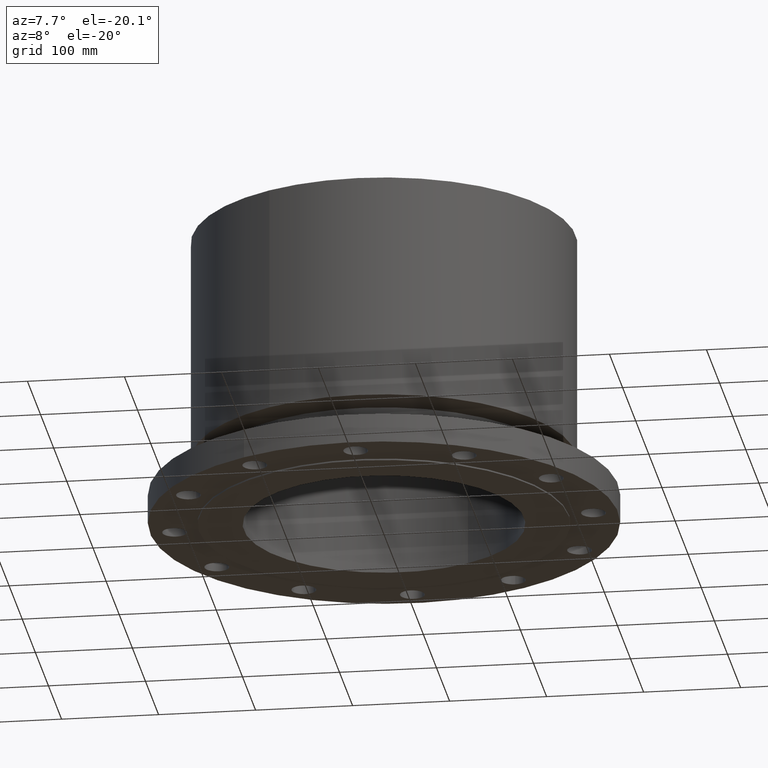
[diagram: clean part render]
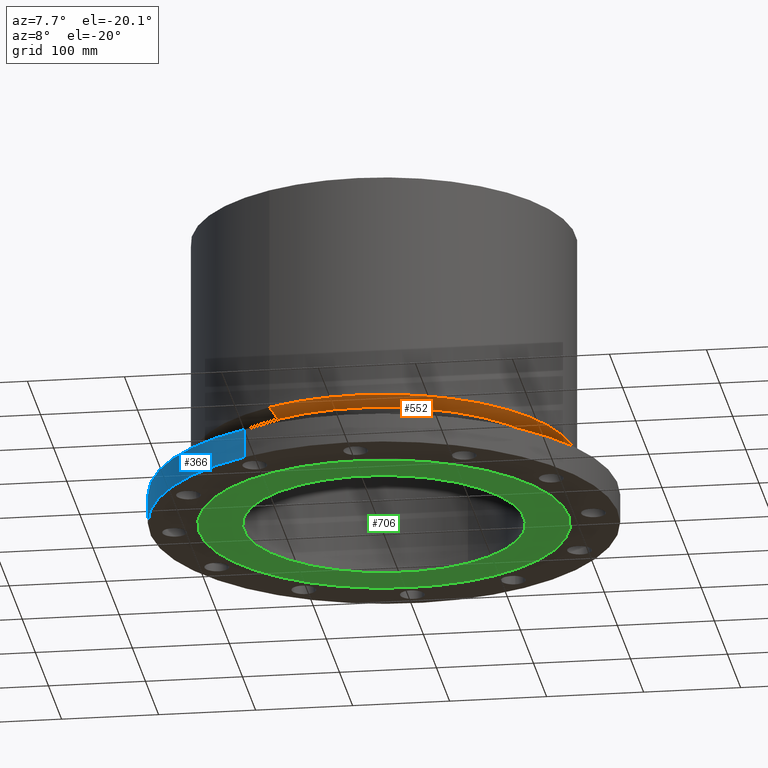
[diagram: same view with three faces highlighted in distinct colors, each labeled with its STEP entity id]
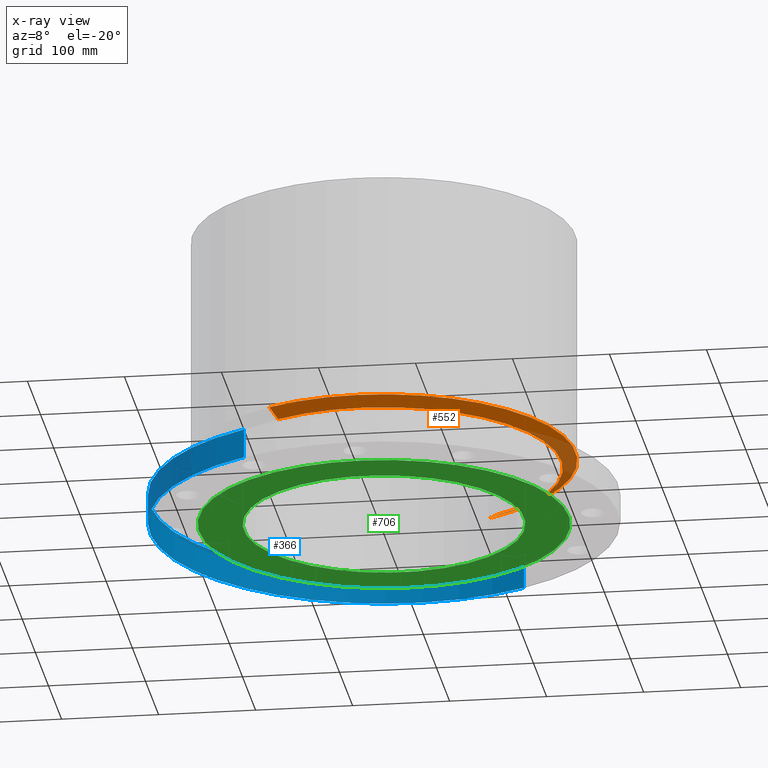
[diagram: x-ray of the same camera — body ghosted, the three highlighted faces saturated]
A machine part, auxiliary view with three faces highlighted in distinct colors.
The next image is the same camera in x-ray (body ghosted, the three faces saturated) — at least one of them is partly hidden behind the body in this view.
Their STEP definitions:

[orange] entity #552 — the highlighted conical surface has half-angle 60 deg.
#493=AXIS2_PLACEMENT_3D('Circle Axis2P3D',#491,#492,$) ;
#525=AXIS2_PLACEMENT_3D('Cone Axis2P3D',#522,#523,#524) ;
#536=AXIS2_PLACEMENT_3D('Circle Axis2P3D',#534,#535,$) ;
#488=CARTESIAN_POINT('Vertex',(3.44706962258,6.30981862002,2.30750000001)) ;
#491=CARTESIAN_POINT('Axis2P3D Location',(0.,0.,2.30750000001)) ;
#495=CARTESIAN_POINT('Vertex',(-3.44706962258,-6.30981862002,2.30750000001)) ;
#522=CARTESIAN_POINT('Axis2P3D Location',(0.,0.,2.30750000001)) ;
#527=CARTESIAN_POINT('Line Origine',(3.58850015647,6.56870547578,2.47781832942)) ;
#531=CARTESIAN_POINT('Vertex',(3.72993069036,6.82759233153,2.64813665883)) ;
#534=CARTESIAN_POINT('Axis2P3D Location',(0.,0.,2.64813665883)) ;
#538=CARTESIAN_POINT('Vertex',(-3.72993069036,-6.82759233153,2.64813665883)) ;
#541=CARTESIAN_POINT('Line Origine',(-3.58850015647,-6.56870547578,2.47781832942)) ;
#492=DIRECTION('Axis2P3D Direction',(0.,0.,-0.0393700787402)) ;
#523=DIRECTION('Axis2P3D Direction',(-0.,-0.,0.0393700787402)) ;
#524=DIRECTION('Axis2P3D XDirection',(0.0188750212049,0.0345504945626,0.)) ;
#528=DIRECTION('Vector Direction',(0.0163462478604,0.0299216060045,0.0196850393701)) ;
#535=DIRECTION('Axis2P3D Direction',(-0.,0.,0.0393700787402)) ;
#542=DIRECTION('Vector Direction',(-0.0163462478604,-0.0299216060045,0.0196850393701)) ;
#529=VECTOR('Line Direction',#528,0.0393700787402) ;
#543=VECTOR('Line Direction',#542,0.0393700787402) ;
#547=ORIENTED_EDGE('',*,*,#497,.F.) ;
#548=ORIENTED_EDGE('',*,*,#533,.T.) ;
#549=ORIENTED_EDGE('',*,*,#540,.T.) ;
#550=ORIENTED_EDGE('',*,*,#545,.F.) ;
#552=ADVANCED_FACE('PartBody',(#551),#526,.T.) ;
#494=CIRCLE('generated circle',#493,7.19000000003) ;
#537=CIRCLE('generated circle',#536,7.78000000003) ;
#526=CONICAL_SURFACE('Cone',#525,7.19000000003,1.0471975512) ;
#497=EDGE_CURVE('',#489,#496,#494,.T.) ;
#533=EDGE_CURVE('',#489,#532,#530,.T.) ;
#540=EDGE_CURVE('',#532,#539,#537,.F.) ;
#545=EDGE_CURVE('',#496,#539,#544,.T.) ;
#546=EDGE_LOOP('',(#547,#548,#549,#550)) ;
#551=FACE_OUTER_BOUND('',#546,.T.) ;
#530=LINE('Line',#527,#529) ;
#544=LINE('Line',#541,#543) ;
#489=VERTEX_POINT('',#488) ;
#496=VERTEX_POINT('',#495) ;
#532=VERTEX_POINT('',#531) ;
#539=VERTEX_POINT('',#538) ;

[blue] entity #366 — the highlighted cylindrical surface (partial cylindrical patch) has radius 241.3 mm, axis along (0, 0, -1).
#82=AXIS2_PLACEMENT_3D('Circle Axis2P3D',#80,#81,$) ;
#339=AXIS2_PLACEMENT_3D('Cylinder Axis2P3D',#336,#337,#338) ;
#350=AXIS2_PLACEMENT_3D('Circle Axis2P3D',#348,#349,$) ;
#80=CARTESIAN_POINT('Axis2P3D Location',(0.,0.,0.)) ;
#84=CARTESIAN_POINT('Vertex',(-4.55454261676,-8.33703433799,1.1189649382E-015)) ;
#86=CARTESIAN_POINT('Vertex',(4.55454261676,8.33703433799,1.1189649382E-015)) ;
#336=CARTESIAN_POINT('Axis2P3D Location',(0.,0.,5.93750000002)) ;
#341=CARTESIAN_POINT('Line Origine',(-4.55454261676,-8.33703433799,0.593750000002)) ;
#345=CARTESIAN_POINT('Vertex',(-4.55454261676,-8.33703433799,1.1875)) ;
#348=CARTESIAN_POINT('Axis2P3D Location',(0.,0.,1.1875)) ;
#352=CARTESIAN_POINT('Vertex',(4.55454261676,8.33703433799,1.1875)) ;
#355=CARTESIAN_POINT('Line Origine',(4.55454261676,8.33703433799,0.593750000002)) ;
#81=DIRECTION('Axis2P3D Direction',(0.,0.,-0.0393700787402)) ;
#337=DIRECTION('Axis2P3D Direction',(0.,0.,-0.0393700787402)) ;
#338=DIRECTION('Axis2P3D XDirection',(0.0188750212049,0.0345504945626,0.)) ;
#342=DIRECTION('Vector Direction',(0.,0.,-0.0393700787402)) ;
#349=DIRECTION('Axis2P3D Direction',(0.,0.,-0.0393700787402)) ;
#356=DIRECTION('Vector Direction',(0.,0.,-0.0393700787402)) ;
#343=VECTOR('Line Direction',#342,0.0393700787402) ;
#357=VECTOR('Line Direction',#356,0.0393700787402) ;
#361=ORIENTED_EDGE('',*,*,#88,.F.) ;
#362=ORIENTED_EDGE('',*,*,#347,.T.) ;
#363=ORIENTED_EDGE('',*,*,#354,.T.) ;
#364=ORIENTED_EDGE('',*,*,#359,.F.) ;
#366=ADVANCED_FACE('PartBody',(#365),#340,.T.) ;
#83=CIRCLE('generated circle',#82,9.50000000004) ;
#351=CIRCLE('generated circle',#350,9.50000000004) ;
#340=CYLINDRICAL_SURFACE('generated cylinder',#339,9.50000000004) ;
#88=EDGE_CURVE('',#85,#87,#83,.T.) ;
#347=EDGE_CURVE('',#85,#346,#344,.F.) ;
#354=EDGE_CURVE('',#346,#353,#351,.T.) ;
#359=EDGE_CURVE('',#87,#353,#358,.F.) ;
#360=EDGE_LOOP('',(#361,#362,#363,#364)) ;
#365=FACE_OUTER_BOUND('',#360,.T.) ;
#344=LINE('Line',#341,#343) ;
#358=LINE('Line',#355,#357) ;
#85=VERTEX_POINT('',#84) ;
#87=VERTEX_POINT('',#86) ;
#346=VERTEX_POINT('',#345) ;
#353=VERTEX_POINT('',#352) ;

[green] entity #706 — the highlighted planar face has unit normal (0, 0, -1).
#650=AXIS2_PLACEMENT_3D('Circle Axis2P3D',#648,#649,$) ;
#669=AXIS2_PLACEMENT_3D('Circle Axis2P3D',#667,#668,$) ;
#682=AXIS2_PLACEMENT_3D('Plane Axis2P3D',#679,#680,#681) ;
#686=AXIS2_PLACEMENT_3D('Circle Axis2P3D',#684,#685,$) ;
#695=AXIS2_PLACEMENT_3D('Circle Axis2P3D',#693,#694,$) ;
#645=CARTESIAN_POINT('Vertex',(2.72793131467,4.99344477718,-0.0625000000003)) ;
#648=CARTESIAN_POINT('Axis2P3D Location',(0.,0.,-0.0625000000003)) ;
#652=CARTESIAN_POINT('Vertex',(-2.72793131467,-4.99344477718,-0.0625000000003)) ;
#667=CARTESIAN_POINT('Axis2P3D Location',(0.,0.,-0.0625000000003)) ;
#679=CARTESIAN_POINT('Axis2P3D Location',(0.,5.69000000002,-0.0625000000003)) ;
#684=CARTESIAN_POINT('Axis2P3D Location',(0.,0.,-0.0625000000003)) ;
#688=CARTESIAN_POINT('Vertex',(-3.59569153955,-6.5818692142,-0.0625000000002)) ;
#690=CARTESIAN_POINT('Vertex',(3.59569153955,6.5818692142,-0.0625000000002)) ;
#693=CARTESIAN_POINT('Axis2P3D Location',(0.,0.,-0.0625000000003)) ;
#649=DIRECTION('Axis2P3D Direction',(0.,0.,-0.0393700787402)) ;
#668=DIRECTION('Axis2P3D Direction',(0.,0.,-0.0393700787402)) ;
#680=DIRECTION('Axis2P3D Direction',(0.,0.,-0.0393700787402)) ;
#681=DIRECTION('Axis2P3D XDirection',(0.0393700787402,0.,0.)) ;
#685=DIRECTION('Axis2P3D Direction',(0.,0.,-0.0393700787402)) ;
#694=DIRECTION('Axis2P3D Direction',(0.,0.,-0.0393700787402)) ;
#699=ORIENTED_EDGE('',*,*,#692,.T.) ;
#700=ORIENTED_EDGE('',*,*,#697,.T.) ;
#703=ORIENTED_EDGE('',*,*,#654,.F.) ;
#704=ORIENTED_EDGE('',*,*,#671,.F.) ;
#705=FACE_BOUND('',#702,.T.) ;
#706=ADVANCED_FACE('PartBody',(#701,#705),#683,.T.) ;
#651=CIRCLE('generated circle',#650,5.69000000002) ;
#670=CIRCLE('generated circle',#669,5.69000000002) ;
#687=CIRCLE('generated circle',#686,7.50000000003) ;
#696=CIRCLE('generated circle',#695,7.50000000003) ;
#654=EDGE_CURVE('',#646,#653,#651,.T.) ;
#671=EDGE_CURVE('',#653,#646,#670,.T.) ;
#692=EDGE_CURVE('',#689,#691,#687,.T.) ;
#697=EDGE_CURVE('',#691,#689,#696,.T.) ;
#698=EDGE_LOOP('',(#699,#700)) ;
#702=EDGE_LOOP('',(#703,#704)) ;
#701=FACE_OUTER_BOUND('',#698,.T.) ;
#683=PLANE('',#682) ;
#646=VERTEX_POINT('',#645) ;
#653=VERTEX_POINT('',#652) ;
#689=VERTEX_POINT('',#688) ;
#691=VERTEX_POINT('',#690) ;